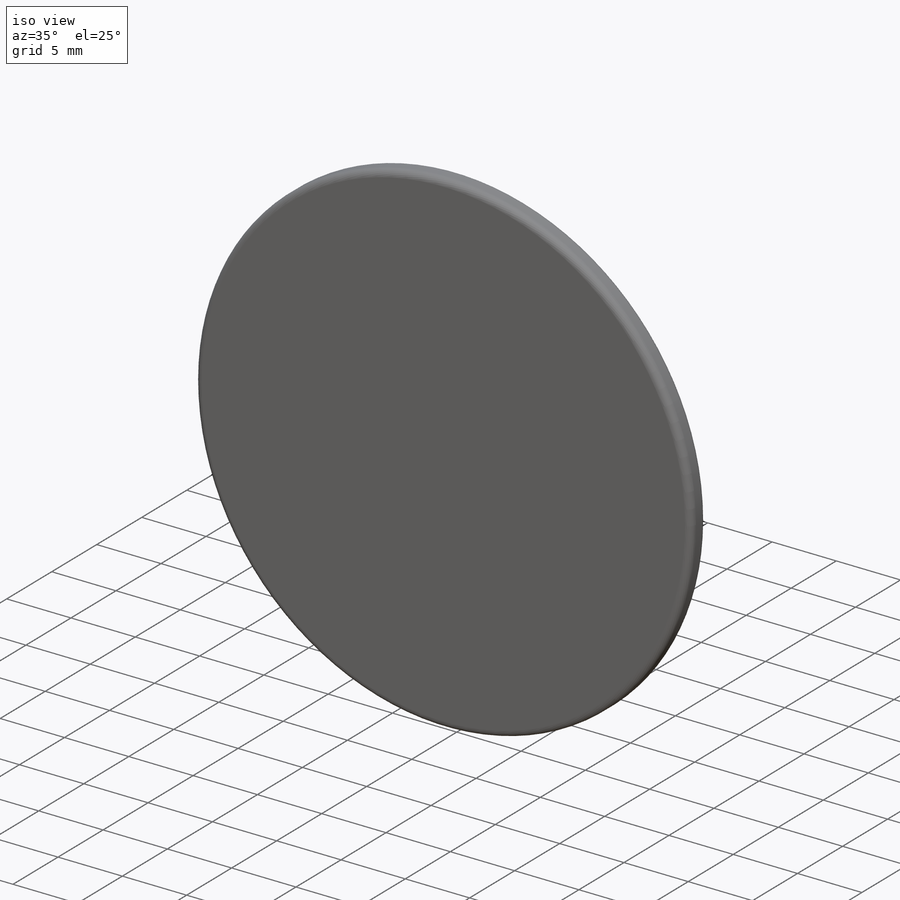
[diagram: iso view]
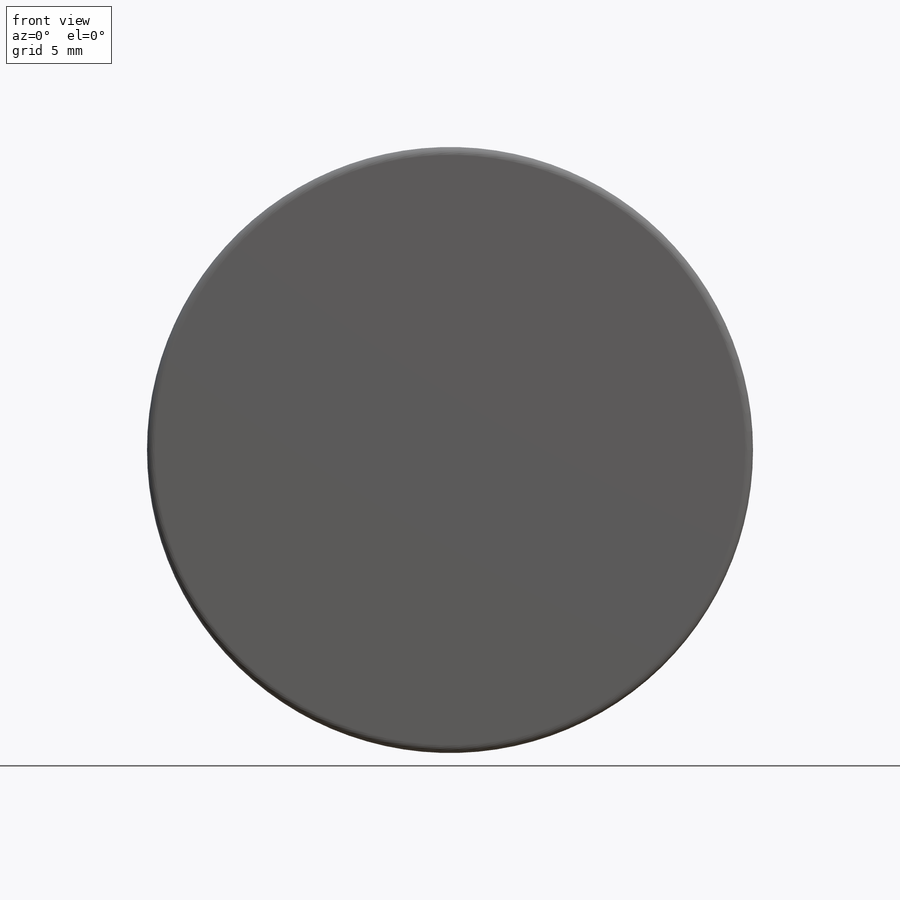
[diagram: front view]
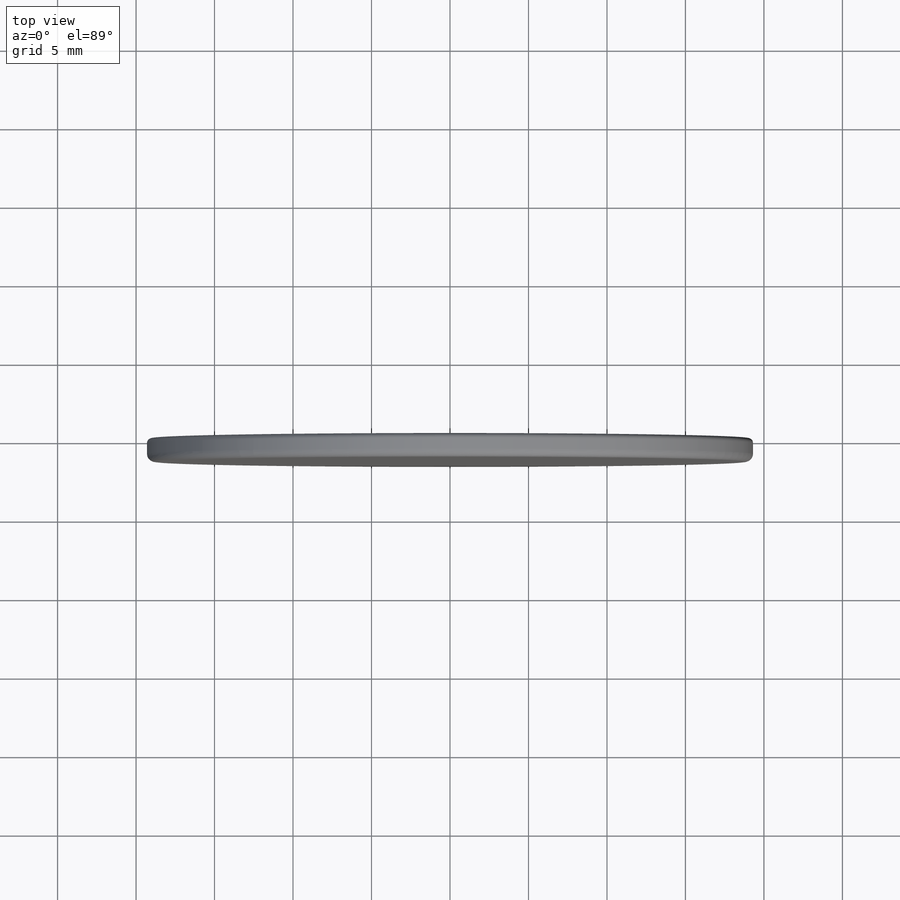
[diagram: top view]
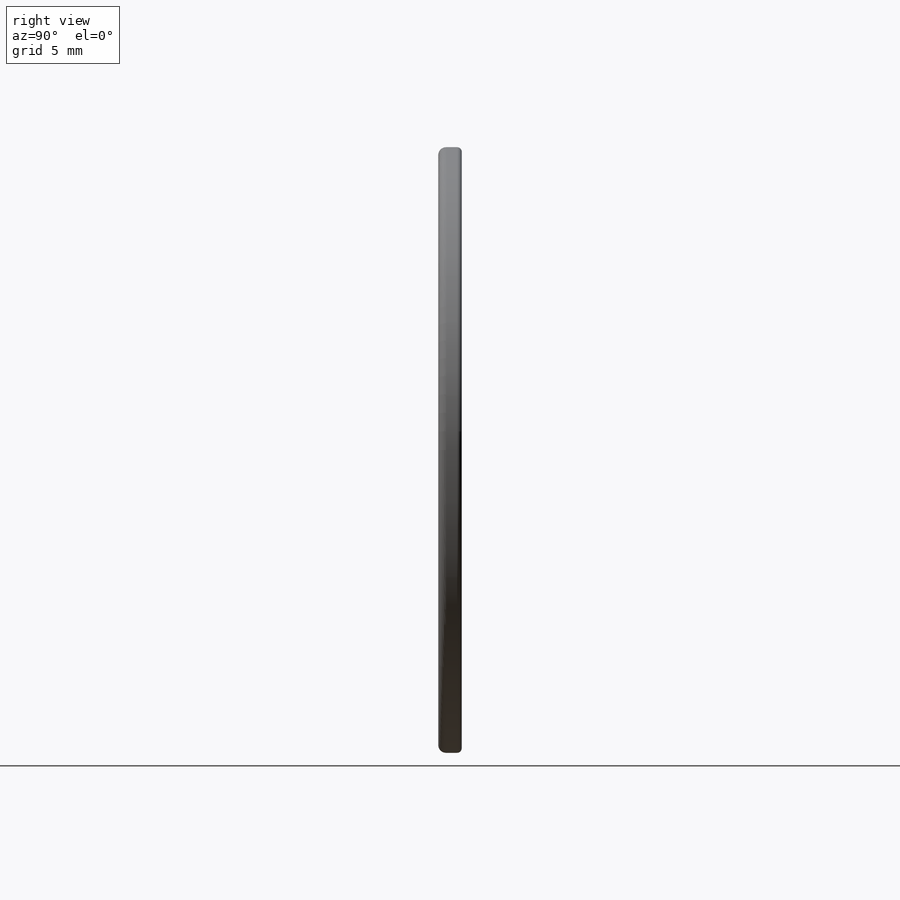
[diagram: right view]
SOLIDWORKS PART (.sldprt)
format: sldprt  version: not decoded by parser v0  size: 206,336 bytes
history: native  units: mm
features: plane x3, sketch x2, fillet x2, material x1, extrude x1, cut_extrude x1 (+8 scaffold rows collapsed)
feature tree (18):
  scaffold x8  (default folders/planes/origin — collapsed)
  material  "Matériau <non spécifié>"
  plane  "Face"
  plane  "Dessus"
  plane  "Droite"
  sketch  "Esquisse1"  dims[D1=38.6mm]
  extrude  "Boss.-Extru.1"  Depth=1.5mm
  sketch  "Esquisse3"  dims[D1=36.0mm]
  cut_extrude  "Enlèv. mat.-Extru.2"  Depth=1mm
  fillet  "Congé1"  Radius=0.5mm
  fillet  "Congé2"  Radius=0.3mm
decode coverage: 6 of 6 modeling features carry decoded parameters
note: suppression state not decoded; provenance and decode notes live in map.json
